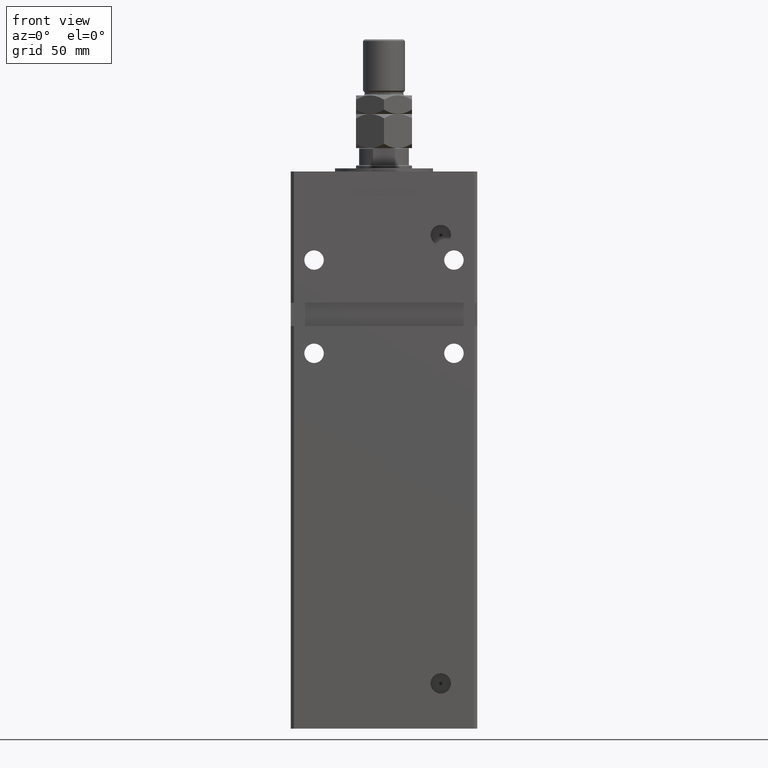
[diagram: clean part render]
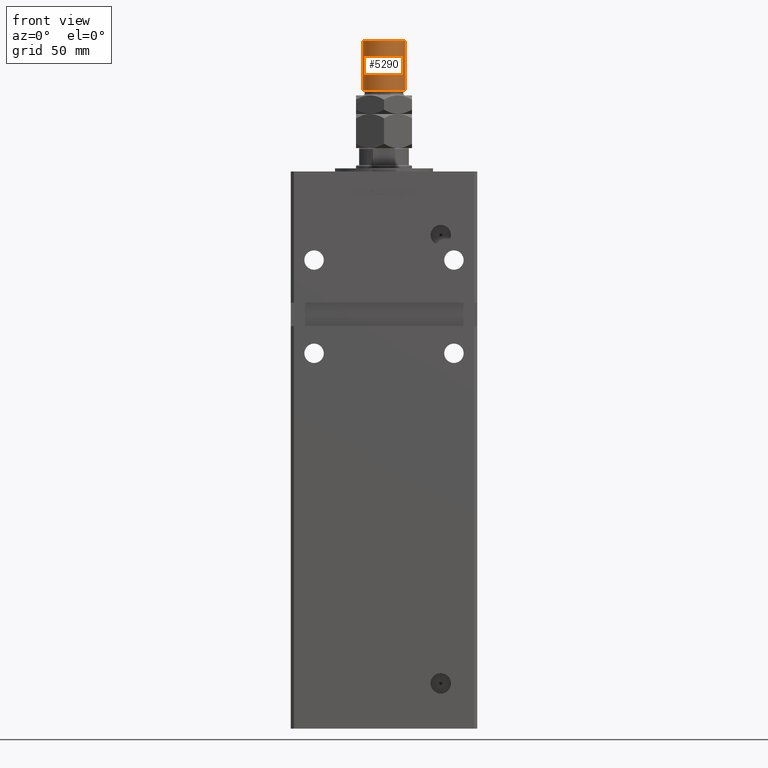
[diagram: same view with one face highlighted and labeled with its STEP entity id]
A machine part, front view. The second image highlights one B-rep face of the part: STEP entity #5290.
In plain terms, the highlighted cylindrical surface (edge-blend (fillet) strip) has radius 13.5 mm, axis along (-0, -0, -1).
Its self-contained STEP definition (entity closure, byte-faithful):
#2531 = VERTEX_POINT ( 'NONE', #46960 ) ;
#3619 = LINE ( 'NONE', #33455, #54069 ) ;
#3654 = AXIS2_PLACEMENT_3D ( 'NONE', #53717, #41828, #50123 ) ;
#4155 = EDGE_CURVE ( 'NONE', #6049, #20572, #3619, .T. ) ;
#4182 = VERTEX_POINT ( 'NONE', #41466 ) ;
#5290 = ADVANCED_FACE ( 'NONE', ( #15616 ), #45418, .T. ) ;
#5346 = ORIENTED_EDGE ( 'NONE', *, *, #53670, .T. ) ;
#6049 = VERTEX_POINT ( 'NONE', #46926 ) ;
#11756 = DIRECTION ( 'NONE',  ( 1.000000000000000000, 0.000000000000000000, 0.000000000000000000 ) ) ;
#12278 = CIRCLE ( 'NONE', #21131, 13.50000000000000000 ) ;
#14487 = DIRECTION ( 'NONE',  ( 1.000000000000000000, 0.000000000000000000, 0.000000000000000000 ) ) ;
#15616 = FACE_OUTER_BOUND ( 'NONE', #23343, .T. ) ;
#17153 = CARTESIAN_POINT ( 'NONE',  ( 13.50000000000000000, 1.653273178848926867E-15, 70.00000000000000000 ) ) ;
#18320 = CARTESIAN_POINT ( 'NONE',  ( -13.50000000000000000, 0.000000000000000000, 37.00000000000000000 ) ) ;
#20572 = VERTEX_POINT ( 'NONE', #18320 ) ;
#21131 = AXIS2_PLACEMENT_3D ( 'NONE', #23937, #44908, #11756 ) ;
#21432 = ORIENTED_EDGE ( 'NONE', *, *, #33774, .F. ) ;
#23343 = EDGE_LOOP ( 'NONE', ( #21432, #50991, #54314, #5346 ) ) ;
#23937 = CARTESIAN_POINT ( 'NONE',  ( 0.000000000000000000, 0.000000000000000000, 68.99999999999998579 ) ) ;
#27936 = AXIS2_PLACEMENT_3D ( 'NONE', #52327, #39623, #14487 ) ;
#29419 = EDGE_CURVE ( 'NONE', #2531, #6049, #12278, .T. ) ;
#33455 = CARTESIAN_POINT ( 'NONE',  ( -13.50000000000000000, 0.000000000000000000, 70.00000000000000000 ) ) ;
#33712 = LINE ( 'NONE', #17153, #46868 ) ;
#33774 = EDGE_CURVE ( 'NONE', #2531, #4182, #33712, .T. ) ;
#33994 = DIRECTION ( 'NONE',  ( -0.000000000000000000, -0.000000000000000000, -1.000000000000000000 ) ) ;
#39412 = CIRCLE ( 'NONE', #27936, 13.50000000000000000 ) ;
#39623 = DIRECTION ( 'NONE',  ( -0.000000000000000000, -0.000000000000000000, 1.000000000000000000 ) ) ;
#40452 = DIRECTION ( 'NONE',  ( -0.000000000000000000, -0.000000000000000000, -1.000000000000000000 ) ) ;
#41466 = CARTESIAN_POINT ( 'NONE',  ( 13.50000000000000000, 1.653273178848926867E-15, 37.00000000000000000 ) ) ;
#41828 = DIRECTION ( 'NONE',  ( -0.000000000000000000, -0.000000000000000000, -1.000000000000000000 ) ) ;
#44908 = DIRECTION ( 'NONE',  ( 0.000000000000000000, 0.000000000000000000, -1.000000000000000000 ) ) ;
#45418 = CYLINDRICAL_SURFACE ( 'NONE', #3654, 13.50000000000000000 ) ;
#46868 = VECTOR ( 'NONE', #33994, 1000.000000000000000 ) ;
#46926 = CARTESIAN_POINT ( 'NONE',  ( -13.50000000000000000, 0.000000000000000000, 68.99999999999998579 ) ) ;
#46960 = CARTESIAN_POINT ( 'NONE',  ( 13.50000000000000000, 1.653273178848926867E-15, 68.99999999999998579 ) ) ;
#50123 = DIRECTION ( 'NONE',  ( -1.000000000000000000, 0.000000000000000000, 0.000000000000000000 ) ) ;
#50991 = ORIENTED_EDGE ( 'NONE', *, *, #29419, .T. ) ;
#52327 = CARTESIAN_POINT ( 'NONE',  ( 0.000000000000000000, 0.000000000000000000, 37.00000000000000000 ) ) ;
#53670 = EDGE_CURVE ( 'NONE', #20572, #4182, #39412, .T. ) ;
#53717 = CARTESIAN_POINT ( 'NONE',  ( 0.000000000000000000, 0.000000000000000000, 70.00000000000000000 ) ) ;
#54069 = VECTOR ( 'NONE', #40452, 1000.000000000000000 ) ;
#54314 = ORIENTED_EDGE ( 'NONE', *, *, #4155, .T. ) ;